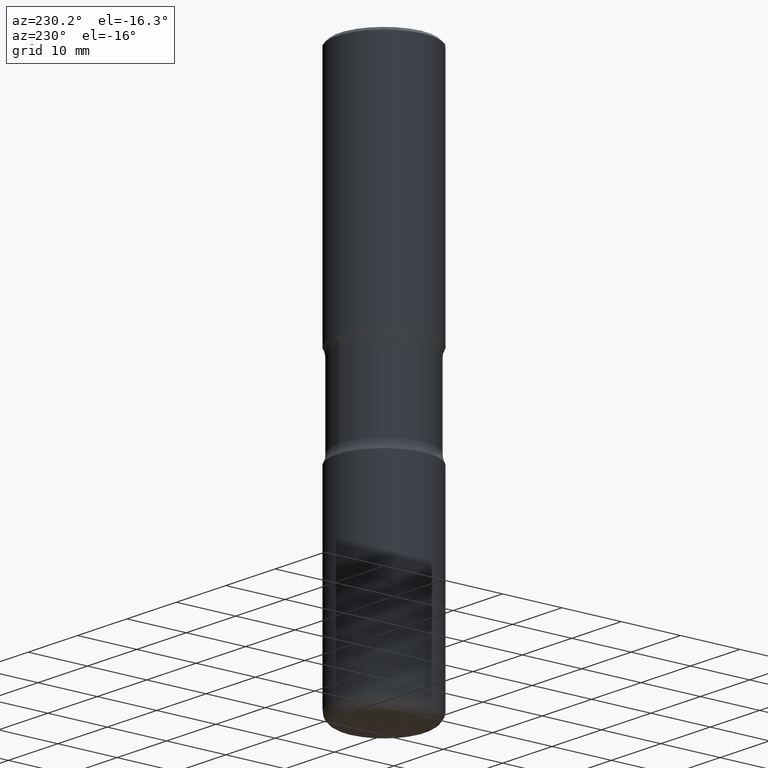
[diagram: clean part render]
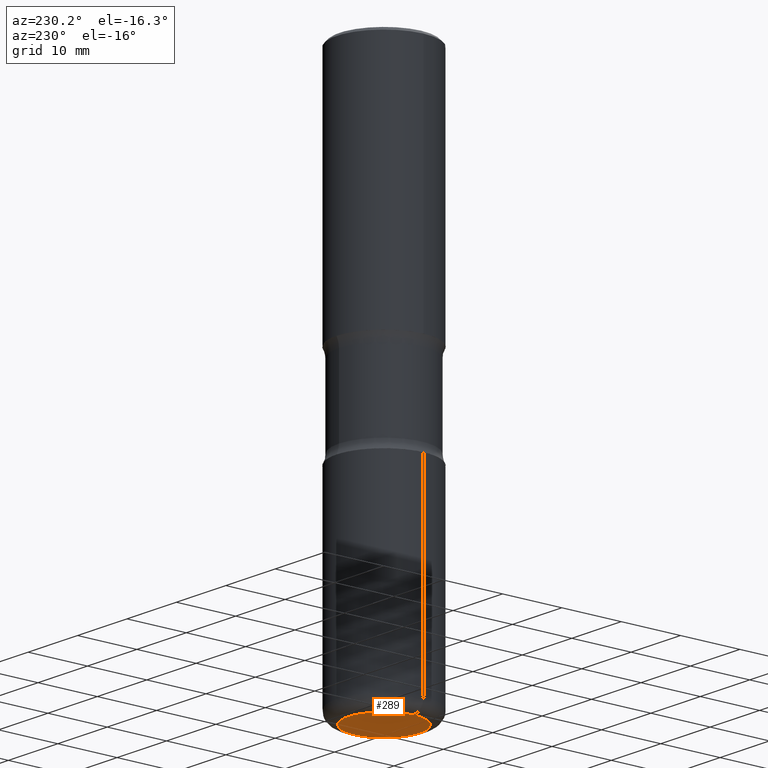
[diagram: same view with one face highlighted and labeled with its STEP entity id]
A machine part, auxiliary view. The second image highlights one B-rep face of the part: STEP entity #289.
In plain terms, the highlighted planar face has unit normal (0, -0, -1).
Its self-contained STEP definition (entity closure, byte-faithful):
#9 = ORIENTED_EDGE ( 'NONE', *, *, #543, .F. ) ;
#38 = CARTESIAN_POINT ( 'NONE',  ( 8.857732562883184381E-29, -1.264649455742375708E-14, -3.622100000000000097 ) ) ;
#53 = DIRECTION ( 'NONE',  ( -2.445468806185136597E-29, 3.491481338843145583E-15, 1.000000000000000000 ) ) ;
#106 = CARTESIAN_POINT ( 'NONE',  ( 8.857732562883184381E-29, -1.264649455742375708E-14, -3.622100000000000097 ) ) ;
#123 = CIRCLE ( 'NONE', #432, 0.2362500000000002098 ) ;
#175 = CARTESIAN_POINT ( 'NONE',  ( 1.470718031460110537E-28, -4.269752447073433290E-15, -3.622100000000000541 ) ) ;
#197 = CARTESIAN_POINT ( 'NONE',  ( 0.2362500000000002098, -1.429621949002714027E-14, -3.622100000000000097 ) ) ;
#244 = VERTEX_POINT ( 'NONE', #345 ) ;
#256 = AXIS2_PLACEMENT_3D ( 'NONE', #106, #53, #529 ) ;
#289 = ADVANCED_FACE ( 'NONE', ( #352 ), #360, .T. ) ;
#342 = CIRCLE ( 'NONE', #256, 0.2362500000000002098 ) ;
#345 = CARTESIAN_POINT ( 'NONE',  ( -0.2362500000000002098, -1.055084898698544382E-14, -3.622100000000000097 ) ) ;
#352 = FACE_OUTER_BOUND ( 'NONE', #444, .T. ) ;
#360 = PLANE ( 'NONE',  #484 ) ;
#432 = AXIS2_PLACEMENT_3D ( 'NONE', #38, #519, #556 ) ;
#444 = EDGE_LOOP ( 'NONE', ( #451, #9 ) ) ;
#451 = ORIENTED_EDGE ( 'NONE', *, *, #478, .F. ) ;
#476 = DIRECTION ( 'NONE',  ( -1.000000000000000000, 6.982962677686265922E-15, -4.876176775795935793E-29 ) ) ;
#478 = EDGE_CURVE ( 'NONE', #533, #244, #123, .T. ) ;
#484 = AXIS2_PLACEMENT_3D ( 'NONE', #175, #522, #476 ) ;
#519 = DIRECTION ( 'NONE',  ( -2.445468806185136597E-29, 3.491481338843145583E-15, 1.000000000000000000 ) ) ;
#522 = DIRECTION ( 'NONE',  ( 2.438088387897960049E-29, -3.491481338843145188E-15, -1.000000000000000000 ) ) ;
#529 = DIRECTION ( 'NONE',  ( 1.000000000000000000, -6.982962677686264344E-15, 0.000000000000000000 ) ) ;
#533 = VERTEX_POINT ( 'NONE', #197 ) ;
#543 = EDGE_CURVE ( 'NONE', #244, #533, #342, .T. ) ;
#556 = DIRECTION ( 'NONE',  ( 1.000000000000000000, -6.982962677686264344E-15, 0.000000000000000000 ) ) ;